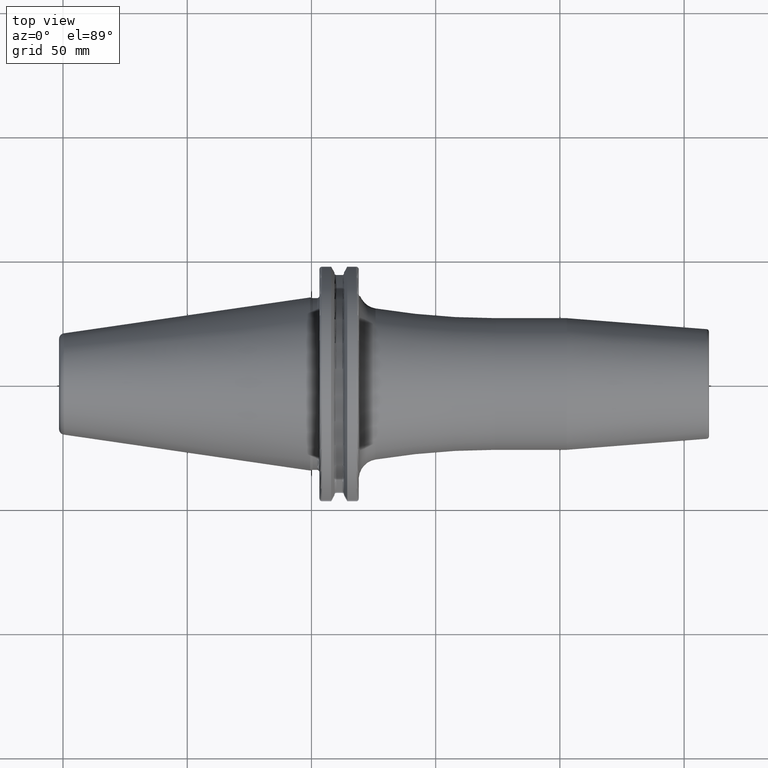
[diagram: clean part render]
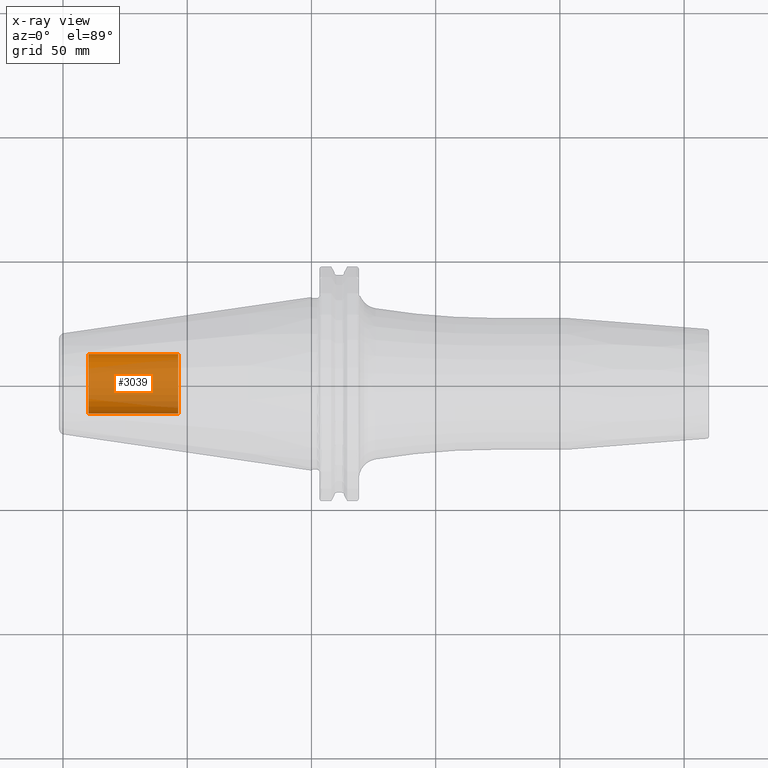
[diagram: x-ray — body ghosted, one internal face saturated and labeled with its STEP entity id]
A machine part, top view, then the same camera in x-ray: the body is ghosted and one INTERNAL B-rep face — a face not visible from any outside direction — is saturated and labeled: STEP entity #3039.
In plain terms, the highlighted cylindrical surface (edge-blend (fillet) strip) has radius 12.0032 mm, axis along (1, 0, 0).
Its self-contained STEP definition (entity closure, byte-faithful):
#2974=CARTESIAN_POINT('',(-8.985E1,0.E0,0.E0));
#2975=DIRECTION('',(-1.E0,0.E0,0.E0));
#2976=DIRECTION('',(0.E0,1.E0,0.E0));
#2977=AXIS2_PLACEMENT_3D('',#2974,#2975,#2976);
#2979=DIRECTION('',(1.E0,0.E0,0.E0));
#2980=VECTOR('',#2979,3.625E1);
#2981=CARTESIAN_POINT('',(-8.985E1,-1.200325E1,0.E0));
#2982=LINE('',#2981,#2980);
#2988=DIRECTION('',(1.E0,0.E0,0.E0));
#2989=VECTOR('',#2988,3.625E1);
#2990=CARTESIAN_POINT('',(-8.985E1,1.200325E1,0.E0));
#2991=LINE('',#2990,#2989);
#2997=CARTESIAN_POINT('',(-5.36E1,0.E0,0.E0));
#2998=DIRECTION('',(1.E0,0.E0,0.E0));
#2999=DIRECTION('',(0.E0,-1.E0,0.E0));
#3000=AXIS2_PLACEMENT_3D('',#2997,#2998,#2999);
#3012=CARTESIAN_POINT('',(-8.985E1,1.200325E1,0.E0));
#3013=CARTESIAN_POINT('',(-8.985E1,-1.200325E1,0.E0));
#3014=VERTEX_POINT('',#3012);
#3015=VERTEX_POINT('',#3013);
#3016=CARTESIAN_POINT('',(-5.36E1,1.200325E1,0.E0));
#3017=CARTESIAN_POINT('',(-5.36E1,-1.200325E1,0.E0));
#3018=VERTEX_POINT('',#3016);
#3019=VERTEX_POINT('',#3017);
#3024=CARTESIAN_POINT('',(-8.985E1,0.E0,0.E0));
#3025=DIRECTION('',(1.E0,0.E0,0.E0));
#3026=DIRECTION('',(0.E0,1.E0,0.E0));
#3027=AXIS2_PLACEMENT_3D('',#3024,#3025,#3026);
#3028=CYLINDRICAL_SURFACE('',#3027,1.200325E1);
#3030=ORIENTED_EDGE('',*,*,#3029,.T.);
#3032=ORIENTED_EDGE('',*,*,#3031,.T.);
#3034=ORIENTED_EDGE('',*,*,#3033,.T.);
#3036=ORIENTED_EDGE('',*,*,#3035,.F.);
#3037=EDGE_LOOP('',(#3030,#3032,#3034,#3036));
#3038=FACE_OUTER_BOUND('',#3037,.F.);
#3039=ADVANCED_FACE('',(#3038),#3028,.T.);
#2978=CIRCLE('',#2977,1.200325E1);
#3001=CIRCLE('',#3000,1.200325E1);
#3029=EDGE_CURVE('',#3014,#3015,#2978,.T.);
#3031=EDGE_CURVE('',#3015,#3019,#2982,.T.);
#3033=EDGE_CURVE('',#3019,#3018,#3001,.T.);
#3035=EDGE_CURVE('',#3014,#3018,#2991,.T.);